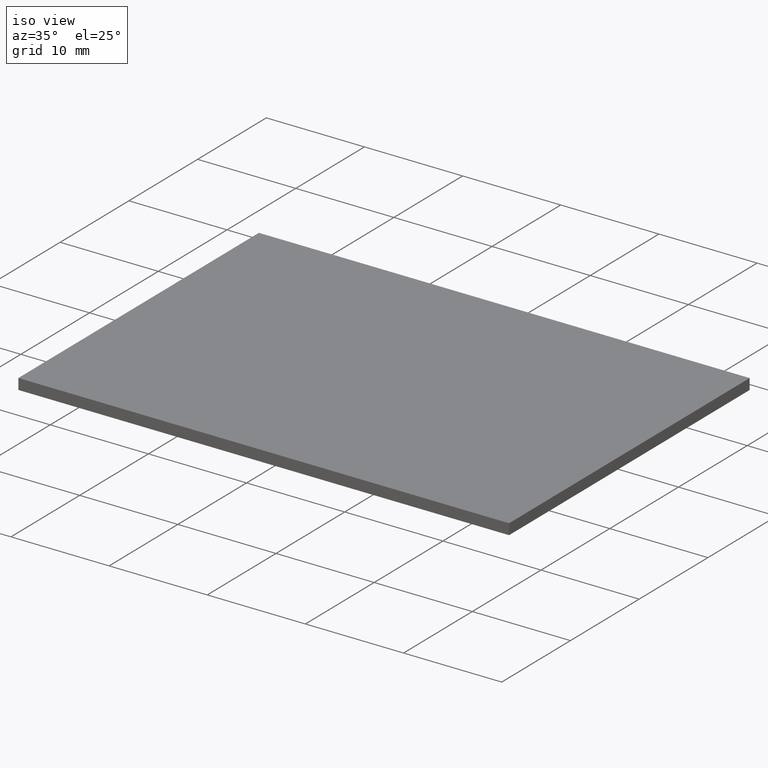
[diagram: clean part render]
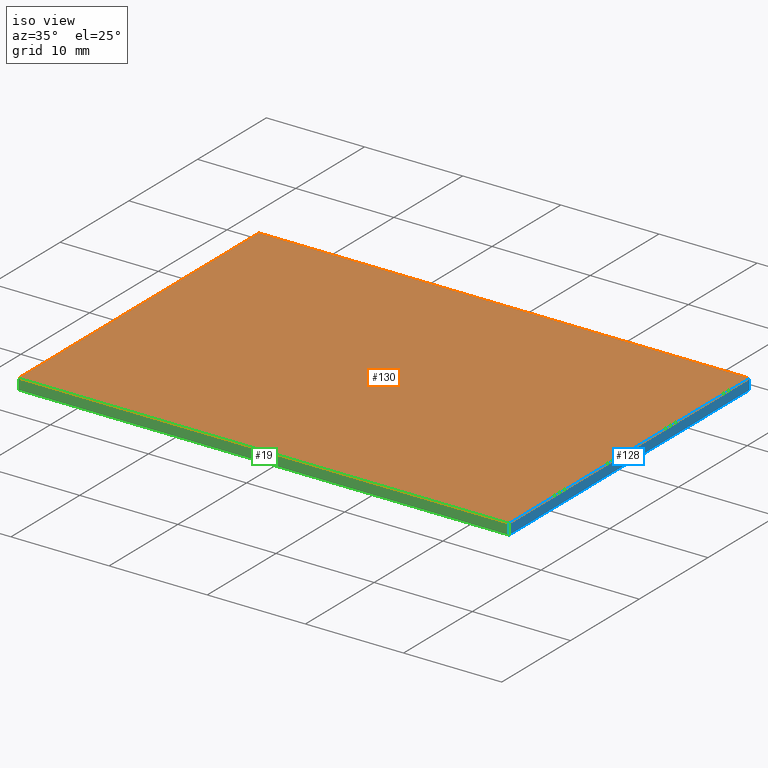
[diagram: same view with three faces highlighted in distinct colors, each labeled with its STEP entity id]
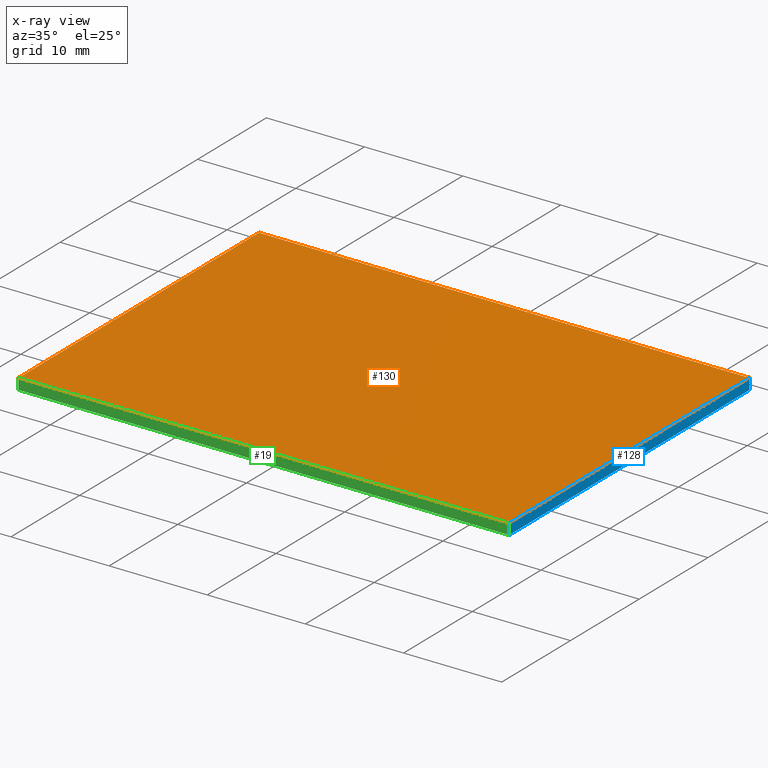
[diagram: x-ray of the same camera — body ghosted, the three highlighted faces saturated]
A machine part, iso view with three faces highlighted in distinct colors.
The next image is the same camera in x-ray (body ghosted, the three faces saturated) — at least one of them is partly hidden behind the body in this view.
Their STEP definitions:

[orange] entity #130 — the highlighted planar face has unit normal (0, 0, -1).
#4 = ORIENTED_EDGE ( 'NONE', *, *, #75, .T. ) ;
#6 = LINE ( 'NONE', #218, #73 ) ;
#21 = EDGE_LOOP ( 'NONE', ( #281, #264, #254, #4 ) ) ;
#24 = AXIS2_PLACEMENT_3D ( 'NONE', #88, #53, #33 ) ;
#32 = DIRECTION ( 'NONE',  ( -1.000000000000000000, -0.0000000000000000000, -0.0000000000000000000 ) ) ;
#33 = DIRECTION ( 'NONE',  ( -1.000000000000000000, 0.0000000000000000000, -0.0000000000000000000 ) ) ;
#34 = CARTESIAN_POINT ( 'NONE',  ( 24.99999999999999600, -17.50000000000000000, 1.100000000000000100 ) ) ;
#51 = VERTEX_POINT ( 'NONE', #74 ) ;
#53 = DIRECTION ( 'NONE',  ( 0.0000000000000000000, 0.0000000000000000000, -1.000000000000000000 ) ) ;
#56 = PLANE ( 'NONE',  #24 ) ;
#57 = CARTESIAN_POINT ( 'NONE',  ( 24.99999999999999600, 17.50000000000000000, 1.100000000000000100 ) ) ;
#68 = VECTOR ( 'NONE', #32, 1000.000000000000000 ) ;
#73 = VECTOR ( 'NONE', #297, 1000.000000000000000 ) ;
#74 = CARTESIAN_POINT ( 'NONE',  ( -25.00000000000000400, -17.50000000000000000, 1.100000000000000100 ) ) ;
#75 = EDGE_CURVE ( 'NONE', #51, #154, #6, .T. ) ;
#82 = CARTESIAN_POINT ( 'NONE',  ( 24.99999999999999600, -17.50000000000000000, 1.100000000000000100 ) ) ;
#88 = CARTESIAN_POINT ( 'NONE',  ( 0.0000000000000000000, 0.0000000000000000000, 1.100000000000000100 ) ) ;
#118 = LINE ( 'NONE', #249, #220 ) ;
#130 = ADVANCED_FACE ( 'NONE', ( #277 ), #56, .F. ) ;
#142 = LINE ( 'NONE', #278, #68 ) ;
#154 = VERTEX_POINT ( 'NONE', #82 ) ;
#158 = DIRECTION ( 'NONE',  ( -0.0000000000000000000, -1.000000000000000000, -0.0000000000000000000 ) ) ;
#169 = EDGE_CURVE ( 'NONE', #208, #236, #142, .T. ) ;
#206 = DIRECTION ( 'NONE',  ( 0.0000000000000000000, 1.000000000000000000, 0.0000000000000000000 ) ) ;
#208 = VERTEX_POINT ( 'NONE', #57 ) ;
#218 = CARTESIAN_POINT ( 'NONE',  ( -25.00000000000000400, -17.50000000000000000, 1.100000000000000100 ) ) ;
#219 = EDGE_CURVE ( 'NONE', #154, #208, #287, .T. ) ;
#220 = VECTOR ( 'NONE', #158, 1000.000000000000000 ) ;
#236 = VERTEX_POINT ( 'NONE', #301 ) ;
#245 = VECTOR ( 'NONE', #206, 1000.000000000000000 ) ;
#249 = CARTESIAN_POINT ( 'NONE',  ( -25.00000000000000400, -17.50000000000000000, 1.100000000000000100 ) ) ;
#254 = ORIENTED_EDGE ( 'NONE', *, *, #306, .T. ) ;
#264 = ORIENTED_EDGE ( 'NONE', *, *, #169, .T. ) ;
#277 = FACE_OUTER_BOUND ( 'NONE', #21, .T. ) ;
#278 = CARTESIAN_POINT ( 'NONE',  ( -25.00000000000000400, 17.50000000000000000, 1.100000000000000100 ) ) ;
#281 = ORIENTED_EDGE ( 'NONE', *, *, #219, .T. ) ;
#287 = LINE ( 'NONE', #34, #245 ) ;
#297 = DIRECTION ( 'NONE',  ( 1.000000000000000000, 0.0000000000000000000, 0.0000000000000000000 ) ) ;
#301 = CARTESIAN_POINT ( 'NONE',  ( -25.00000000000000400, 17.50000000000000000, 1.100000000000000100 ) ) ;
#306 = EDGE_CURVE ( 'NONE', #236, #51, #118, .T. ) ;

[blue] entity #128 — the highlighted planar face has unit normal (-1, 0, 0).
#1 = DIRECTION ( 'NONE',  ( 0.0000000000000000000, 1.000000000000000000, 0.0000000000000000000 ) ) ;
#5 = EDGE_CURVE ( 'NONE', #208, #271, #179, .T. ) ;
#11 = DIRECTION ( 'NONE',  ( 0.0000000000000000000, 0.0000000000000000000, 1.000000000000000000 ) ) ;
#13 = ORIENTED_EDGE ( 'NONE', *, *, #41, .T. ) ;
#26 = VECTOR ( 'NONE', #76, 1000.000000000000000 ) ;
#34 = CARTESIAN_POINT ( 'NONE',  ( 24.99999999999999600, -17.50000000000000000, 1.100000000000000100 ) ) ;
#41 = EDGE_CURVE ( 'NONE', #315, #271, #117, .T. ) ;
#57 = CARTESIAN_POINT ( 'NONE',  ( 24.99999999999999600, 17.50000000000000000, 1.100000000000000100 ) ) ;
#70 = ORIENTED_EDGE ( 'NONE', *, *, #100, .T. ) ;
#76 = DIRECTION ( 'NONE',  ( -0.0000000000000000000, -0.0000000000000000000, -1.000000000000000000 ) ) ;
#80 = CARTESIAN_POINT ( 'NONE',  ( 24.99999999999999600, 17.50000000000000000, 1.100000000000000100 ) ) ;
#82 = CARTESIAN_POINT ( 'NONE',  ( 24.99999999999999600, -17.50000000000000000, 1.100000000000000100 ) ) ;
#100 = EDGE_CURVE ( 'NONE', #154, #315, #160, .T. ) ;
#102 = EDGE_LOOP ( 'NONE', ( #13, #134, #215, #70 ) ) ;
#107 = DIRECTION ( 'NONE',  ( -0.0000000000000000000, -0.0000000000000000000, -1.000000000000000000 ) ) ;
#109 = CARTESIAN_POINT ( 'NONE',  ( 24.99999999999999600, -17.50000000000000000, 0.0000000000000000000 ) ) ;
#110 = CARTESIAN_POINT ( 'NONE',  ( 24.99999999999999600, -17.50000000000000000, 1.100000000000000100 ) ) ;
#114 = CARTESIAN_POINT ( 'NONE',  ( 24.99999999999999600, -17.50000000000000000, 1.100000000000000100 ) ) ;
#116 = DIRECTION ( 'NONE',  ( -1.000000000000000000, 0.0000000000000000000, 0.0000000000000000000 ) ) ;
#117 = LINE ( 'NONE', #109, #168 ) ;
#119 = VECTOR ( 'NONE', #107, 1000.000000000000000 ) ;
#128 = ADVANCED_FACE ( 'NONE', ( #172 ), #205, .F. ) ;
#134 = ORIENTED_EDGE ( 'NONE', *, *, #5, .F. ) ;
#154 = VERTEX_POINT ( 'NONE', #82 ) ;
#160 = LINE ( 'NONE', #110, #26 ) ;
#162 = AXIS2_PLACEMENT_3D ( 'NONE', #114, #116, #11 ) ;
#168 = VECTOR ( 'NONE', #1, 1000.000000000000000 ) ;
#172 = FACE_OUTER_BOUND ( 'NONE', #102, .T. ) ;
#179 = LINE ( 'NONE', #80, #119 ) ;
#205 = PLANE ( 'NONE',  #162 ) ;
#206 = DIRECTION ( 'NONE',  ( 0.0000000000000000000, 1.000000000000000000, 0.0000000000000000000 ) ) ;
#208 = VERTEX_POINT ( 'NONE', #57 ) ;
#215 = ORIENTED_EDGE ( 'NONE', *, *, #219, .F. ) ;
#219 = EDGE_CURVE ( 'NONE', #154, #208, #287, .T. ) ;
#223 = CARTESIAN_POINT ( 'NONE',  ( 24.99999999999999600, 17.50000000000000000, 0.0000000000000000000 ) ) ;
#245 = VECTOR ( 'NONE', #206, 1000.000000000000000 ) ;
#271 = VERTEX_POINT ( 'NONE', #223 ) ;
#280 = CARTESIAN_POINT ( 'NONE',  ( 24.99999999999999600, -17.50000000000000000, 0.0000000000000000000 ) ) ;
#287 = LINE ( 'NONE', #34, #245 ) ;
#315 = VERTEX_POINT ( 'NONE', #280 ) ;

[green] entity #19 — the highlighted planar face has unit normal (0, 1, 0).
#2 = ORIENTED_EDGE ( 'NONE', *, *, #180, .T. ) ;
#6 = LINE ( 'NONE', #218, #73 ) ;
#10 = LINE ( 'NONE', #164, #262 ) ;
#12 = CARTESIAN_POINT ( 'NONE',  ( -25.00000000000000400, -17.50000000000000000, 0.0000000000000000000 ) ) ;
#14 = VERTEX_POINT ( 'NONE', #274 ) ;
#19 = ADVANCED_FACE ( 'NONE', ( #185 ), #156, .F. ) ;
#26 = VECTOR ( 'NONE', #76, 1000.000000000000000 ) ;
#51 = VERTEX_POINT ( 'NONE', #74 ) ;
#73 = VECTOR ( 'NONE', #297, 1000.000000000000000 ) ;
#74 = CARTESIAN_POINT ( 'NONE',  ( -25.00000000000000400, -17.50000000000000000, 1.100000000000000100 ) ) ;
#75 = EDGE_CURVE ( 'NONE', #51, #154, #6, .T. ) ;
#76 = DIRECTION ( 'NONE',  ( -0.0000000000000000000, -0.0000000000000000000, -1.000000000000000000 ) ) ;
#77 = ORIENTED_EDGE ( 'NONE', *, *, #100, .F. ) ;
#79 = CARTESIAN_POINT ( 'NONE',  ( -25.00000000000000400, -17.50000000000000000, 1.100000000000000100 ) ) ;
#82 = CARTESIAN_POINT ( 'NONE',  ( 24.99999999999999600, -17.50000000000000000, 1.100000000000000100 ) ) ;
#86 = VECTOR ( 'NONE', #226, 1000.000000000000000 ) ;
#100 = EDGE_CURVE ( 'NONE', #154, #315, #160, .T. ) ;
#108 = AXIS2_PLACEMENT_3D ( 'NONE', #79, #242, #200 ) ;
#110 = CARTESIAN_POINT ( 'NONE',  ( 24.99999999999999600, -17.50000000000000000, 1.100000000000000100 ) ) ;
#144 = ORIENTED_EDGE ( 'NONE', *, *, #75, .F. ) ;
#154 = VERTEX_POINT ( 'NONE', #82 ) ;
#156 = PLANE ( 'NONE',  #108 ) ;
#160 = LINE ( 'NONE', #110, #26 ) ;
#163 = EDGE_CURVE ( 'NONE', #51, #14, #10, .T. ) ;
#164 = CARTESIAN_POINT ( 'NONE',  ( -25.00000000000000400, -17.50000000000000000, 1.100000000000000100 ) ) ;
#180 = EDGE_CURVE ( 'NONE', #14, #315, #186, .T. ) ;
#185 = FACE_OUTER_BOUND ( 'NONE', #196, .T. ) ;
#186 = LINE ( 'NONE', #12, #86 ) ;
#196 = EDGE_LOOP ( 'NONE', ( #2, #77, #144, #210 ) ) ;
#200 = DIRECTION ( 'NONE',  ( 0.0000000000000000000, -0.0000000000000000000, 1.000000000000000000 ) ) ;
#204 = DIRECTION ( 'NONE',  ( -0.0000000000000000000, -0.0000000000000000000, -1.000000000000000000 ) ) ;
#210 = ORIENTED_EDGE ( 'NONE', *, *, #163, .T. ) ;
#218 = CARTESIAN_POINT ( 'NONE',  ( -25.00000000000000400, -17.50000000000000000, 1.100000000000000100 ) ) ;
#226 = DIRECTION ( 'NONE',  ( 1.000000000000000000, 0.0000000000000000000, 0.0000000000000000000 ) ) ;
#242 = DIRECTION ( 'NONE',  ( 0.0000000000000000000, 1.000000000000000000, 0.0000000000000000000 ) ) ;
#262 = VECTOR ( 'NONE', #204, 1000.000000000000000 ) ;
#274 = CARTESIAN_POINT ( 'NONE',  ( -25.00000000000000400, -17.50000000000000000, 0.0000000000000000000 ) ) ;
#280 = CARTESIAN_POINT ( 'NONE',  ( 24.99999999999999600, -17.50000000000000000, 0.0000000000000000000 ) ) ;
#297 = DIRECTION ( 'NONE',  ( 1.000000000000000000, 0.0000000000000000000, 0.0000000000000000000 ) ) ;
#315 = VERTEX_POINT ( 'NONE', #280 ) ;